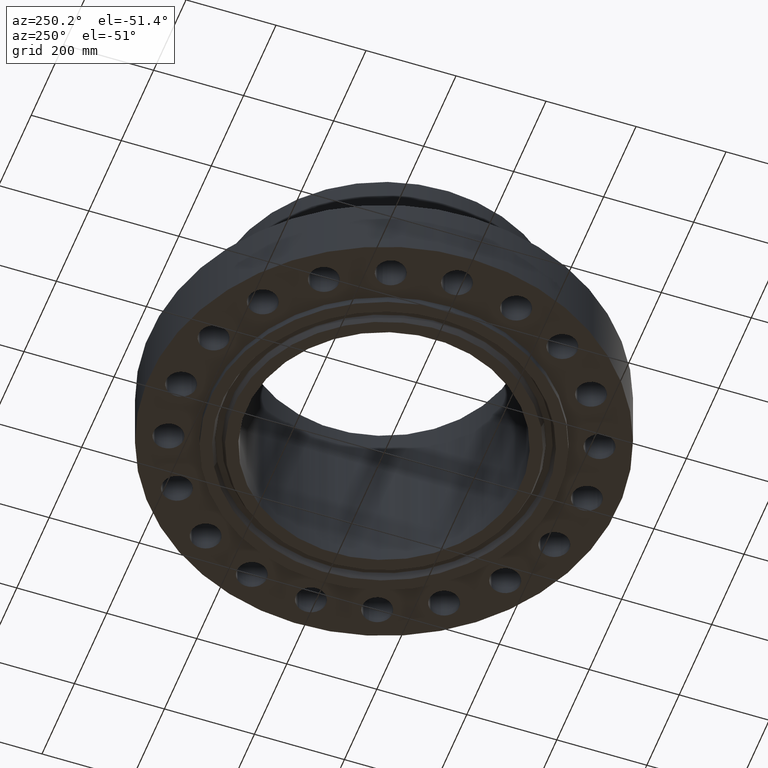
[diagram: clean part render]
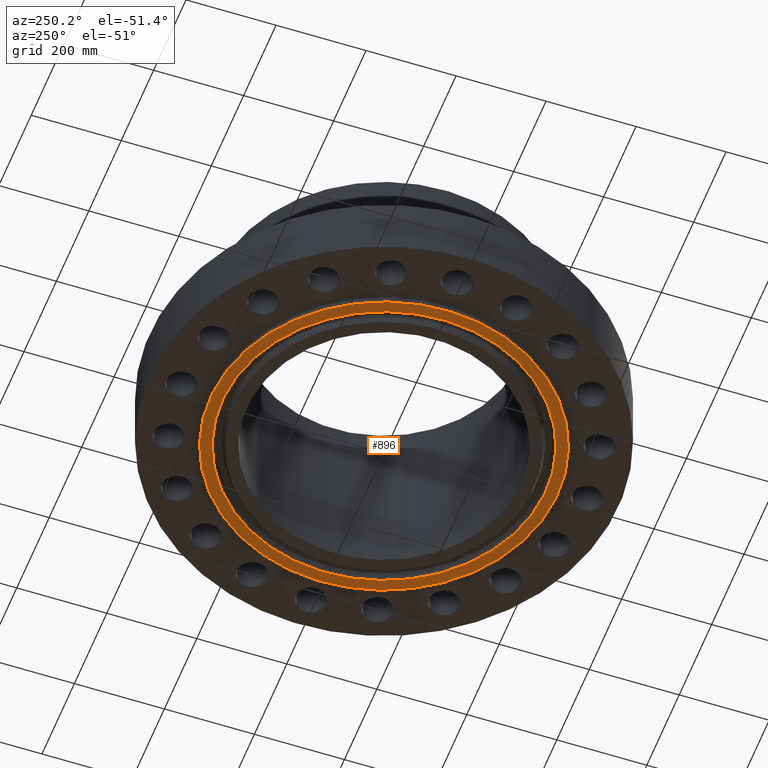
[diagram: same view with one face highlighted and labeled with its STEP entity id]
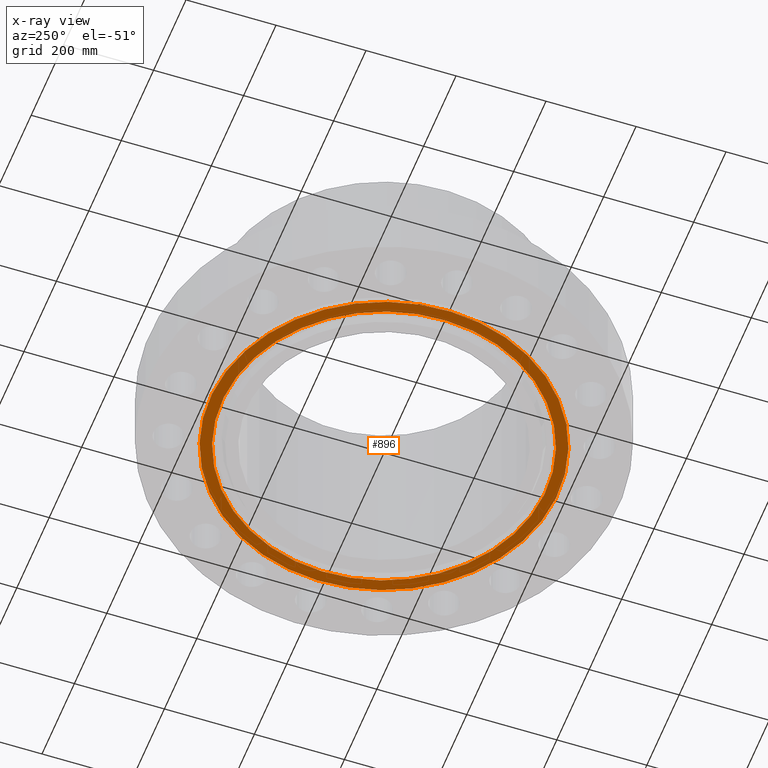
[diagram: x-ray of the same camera — body ghosted, the highlighted face saturated]
A machine part, auxiliary view. The second image highlights one B-rep face of the part: STEP entity #896.
The next image is the same camera in x-ray: the body ghosted, the highlighted face saturated — about 0% of this face is hidden behind the body in this view.
In plain terms, the highlighted planar face has unit normal (0, 0, -1).
Its self-contained STEP definition (entity closure, byte-faithful):
#654=AXIS2_PLACEMENT_3D('Plane Axis2P3D',#651,#652,#653) ;
#845=AXIS2_PLACEMENT_3D('Circle Axis2P3D',#843,#844,$) ;
#864=AXIS2_PLACEMENT_3D('Circle Axis2P3D',#862,#863,$) ;
#876=AXIS2_PLACEMENT_3D('Circle Axis2P3D',#874,#875,$) ;
#885=AXIS2_PLACEMENT_3D('Circle Axis2P3D',#883,#884,$) ;
#651=CARTESIAN_POINT('Axis2P3D Location',(0.,12.,-0.625000000003)) ;
#840=CARTESIAN_POINT('Vertex',(-6.78698763728,-12.4234975375,-0.625000000003)) ;
#843=CARTESIAN_POINT('Axis2P3D Location',(0.,0.,-0.625000000003)) ;
#847=CARTESIAN_POINT('Vertex',(6.78698763728,12.4234975375,-0.625000000003)) ;
#862=CARTESIAN_POINT('Axis2P3D Location',(0.,0.,-0.625000000003)) ;
#874=CARTESIAN_POINT('Axis2P3D Location',(0.,0.,-0.625000000003)) ;
#878=CARTESIAN_POINT('Vertex',(-7.28127536758,-13.3282851588,-0.625000000002)) ;
#880=CARTESIAN_POINT('Vertex',(7.28127536758,13.3282851588,-0.625000000002)) ;
#883=CARTESIAN_POINT('Axis2P3D Location',(0.,0.,-0.625000000003)) ;
#652=DIRECTION('Axis2P3D Direction',(0.,0.,-0.0393700787402)) ;
#653=DIRECTION('Axis2P3D XDirection',(0.0393700787402,0.,0.)) ;
#844=DIRECTION('Axis2P3D Direction',(0.,0.,-0.0393700787402)) ;
#863=DIRECTION('Axis2P3D Direction',(0.,0.,-0.0393700787402)) ;
#875=DIRECTION('Axis2P3D Direction',(0.,0.,-0.0393700787402)) ;
#884=DIRECTION('Axis2P3D Direction',(0.,0.,-0.0393700787402)) ;
#889=ORIENTED_EDGE('',*,*,#882,.T.) ;
#890=ORIENTED_EDGE('',*,*,#887,.T.) ;
#893=ORIENTED_EDGE('',*,*,#866,.F.) ;
#894=ORIENTED_EDGE('',*,*,#849,.F.) ;
#895=FACE_BOUND('',#892,.T.) ;
#896=ADVANCED_FACE('PartBody',(#891,#895),#655,.T.) ;
#846=CIRCLE('generated circle',#845,14.1565000001) ;
#865=CIRCLE('generated circle',#864,14.1565000001) ;
#877=CIRCLE('generated circle',#876,15.1875000001) ;
#886=CIRCLE('generated circle',#885,15.1875000001) ;
#849=EDGE_CURVE('',#841,#848,#846,.T.) ;
#866=EDGE_CURVE('',#848,#841,#865,.T.) ;
#882=EDGE_CURVE('',#879,#881,#877,.T.) ;
#887=EDGE_CURVE('',#881,#879,#886,.T.) ;
#888=EDGE_LOOP('',(#889,#890)) ;
#892=EDGE_LOOP('',(#893,#894)) ;
#891=FACE_OUTER_BOUND('',#888,.T.) ;
#655=PLANE('',#654) ;
#841=VERTEX_POINT('',#840) ;
#848=VERTEX_POINT('',#847) ;
#879=VERTEX_POINT('',#878) ;
#881=VERTEX_POINT('',#880) ;